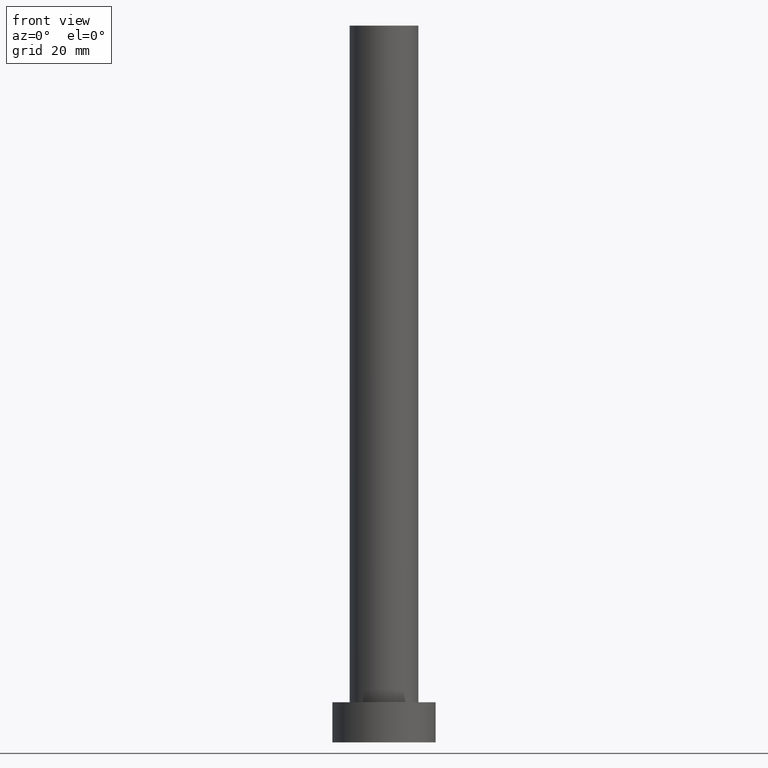
[diagram: clean part render]
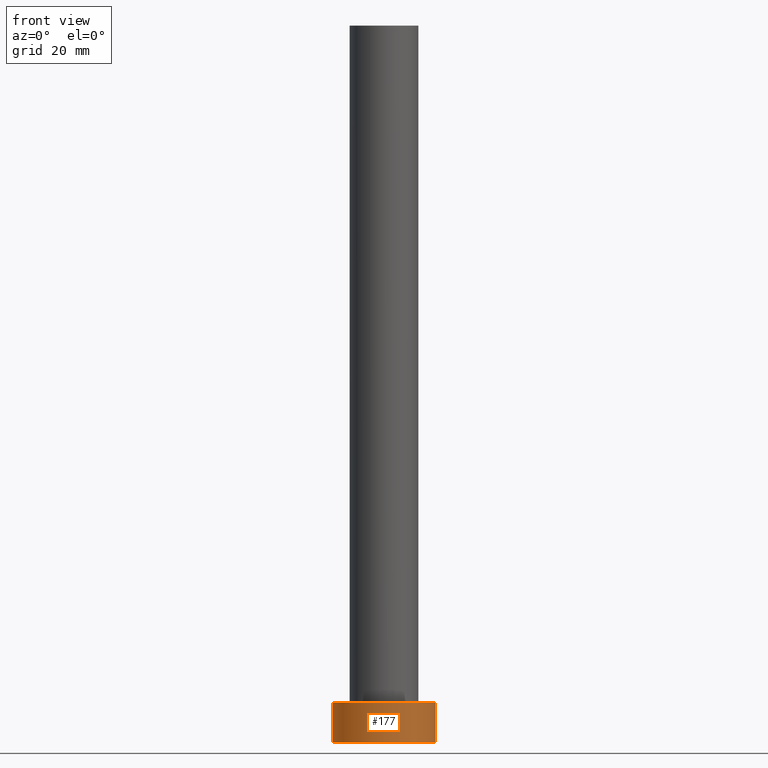
[diagram: same view with one face highlighted and labeled with its STEP entity id]
A machine part, front view. The second image highlights one B-rep face of the part: STEP entity #177.
In plain terms, the highlighted cylindrical surface (partial cylindrical patch) has radius 9 mm, axis along (-0, -0, -1).
Its self-contained STEP definition (entity closure, byte-faithful):
#1 = CARTESIAN_POINT ( 'NONE',  ( 9.000000000000000000, 1.102182119232617714E-15, 7.000000000000000000 ) ) ;
#11 = CIRCLE ( 'NONE', #52, 9.000000000000000000 ) ;
#13 = ORIENTED_EDGE ( 'NONE', *, *, #222, .F. ) ;
#15 = CARTESIAN_POINT ( 'NONE',  ( 0.000000000000000000, 0.000000000000000000, 0.000000000000000000 ) ) ;
#20 = CARTESIAN_POINT ( 'NONE',  ( -9.000000000000000000, 0.000000000000000000, 7.000000000000000000 ) ) ;
#26 = FACE_OUTER_BOUND ( 'NONE', #33, .T. ) ;
#33 = EDGE_LOOP ( 'NONE', ( #186, #13, #206, #157 ) ) ;
#37 = EDGE_CURVE ( 'NONE', #95, #153, #11, .T. ) ;
#40 = DIRECTION ( 'NONE',  ( -0.000000000000000000, -0.000000000000000000, -1.000000000000000000 ) ) ;
#42 = DIRECTION ( 'NONE',  ( -0.000000000000000000, -0.000000000000000000, -1.000000000000000000 ) ) ;
#50 = DIRECTION ( 'NONE',  ( 0.000000000000000000, 0.000000000000000000, 1.000000000000000000 ) ) ;
#52 = AXIS2_PLACEMENT_3D ( 'NONE', #15, #54, #203 ) ;
#54 = DIRECTION ( 'NONE',  ( 0.000000000000000000, 0.000000000000000000, 1.000000000000000000 ) ) ;
#62 = LINE ( 'NONE', #143, #156 ) ;
#69 = CYLINDRICAL_SURFACE ( 'NONE', #188, 9.000000000000000000 ) ;
#89 = DIRECTION ( 'NONE',  ( 1.000000000000000000, 0.000000000000000000, 0.000000000000000000 ) ) ;
#91 = CIRCLE ( 'NONE', #123, 9.000000000000000000 ) ;
#94 = VERTEX_POINT ( 'NONE', #20 ) ;
#95 = VERTEX_POINT ( 'NONE', #122 ) ;
#96 = VECTOR ( 'NONE', #42, 1000.000000000000000 ) ;
#105 = CARTESIAN_POINT ( 'NONE',  ( 9.000000000000000000, 1.102182119232617714E-15, 7.000000000000000000 ) ) ;
#121 = EDGE_CURVE ( 'NONE', #94, #95, #62, .T. ) ;
#122 = CARTESIAN_POINT ( 'NONE',  ( -9.000000000000000000, 0.000000000000000000, 0.000000000000000000 ) ) ;
#123 = AXIS2_PLACEMENT_3D ( 'NONE', #221, #50, #89 ) ;
#134 = DIRECTION ( 'NONE',  ( -1.000000000000000000, 0.000000000000000000, 0.000000000000000000 ) ) ;
#135 = EDGE_CURVE ( 'NONE', #227, #153, #213, .T. ) ;
#143 = CARTESIAN_POINT ( 'NONE',  ( -9.000000000000000000, 0.000000000000000000, 7.000000000000000000 ) ) ;
#145 = CARTESIAN_POINT ( 'NONE',  ( 0.000000000000000000, 0.000000000000000000, 7.000000000000000000 ) ) ;
#153 = VERTEX_POINT ( 'NONE', #158 ) ;
#156 = VECTOR ( 'NONE', #40, 1000.000000000000000 ) ;
#157 = ORIENTED_EDGE ( 'NONE', *, *, #37, .T. ) ;
#158 = CARTESIAN_POINT ( 'NONE',  ( 9.000000000000000000, 1.102182119232617714E-15, 0.000000000000000000 ) ) ;
#177 = ADVANCED_FACE ( 'NONE', ( #26 ), #69, .T. ) ;
#186 = ORIENTED_EDGE ( 'NONE', *, *, #135, .F. ) ;
#188 = AXIS2_PLACEMENT_3D ( 'NONE', #145, #220, #134 ) ;
#203 = DIRECTION ( 'NONE',  ( 1.000000000000000000, 0.000000000000000000, 0.000000000000000000 ) ) ;
#206 = ORIENTED_EDGE ( 'NONE', *, *, #121, .T. ) ;
#213 = LINE ( 'NONE', #1, #96 ) ;
#220 = DIRECTION ( 'NONE',  ( -0.000000000000000000, -0.000000000000000000, -1.000000000000000000 ) ) ;
#221 = CARTESIAN_POINT ( 'NONE',  ( 0.000000000000000000, 0.000000000000000000, 7.000000000000000000 ) ) ;
#222 = EDGE_CURVE ( 'NONE', #94, #227, #91, .T. ) ;
#227 = VERTEX_POINT ( 'NONE', #105 ) ;